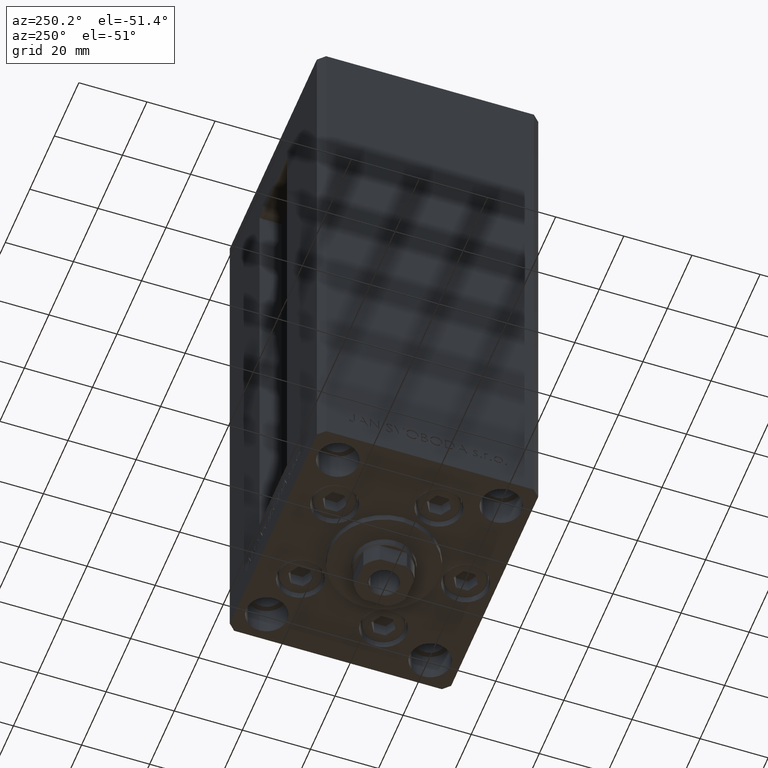
[diagram: clean part render]
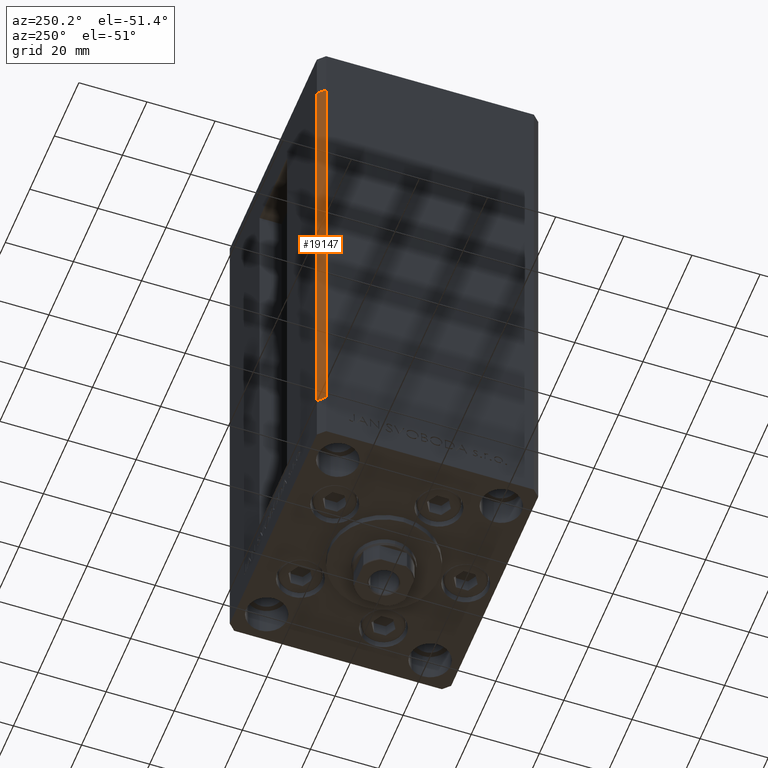
[diagram: same view with one face highlighted and labeled with its STEP entity id]
A machine part, auxiliary view. The second image highlights one B-rep face of the part: STEP entity #19147.
In plain terms, the highlighted planar face has unit normal (0.7071, -0.7071, 0).
Its self-contained STEP definition (entity closure, byte-faithful):
#1422 = EDGE_CURVE ( 'NONE', #25879, #16804, #31810, .T. ) ;
#1599 = CARTESIAN_POINT ( 'NONE',  ( -35.50000000000000000, 32.49999999999999289, 136.0000000000000000 ) ) ;
#6420 = DIRECTION ( 'NONE',  ( 0.7071067811865451302, -0.7071067811865500152, 0.000000000000000000 ) ) ;
#7859 = ORIENTED_EDGE ( 'NONE', *, *, #47661, .T. ) ;
#9646 = CARTESIAN_POINT ( 'NONE',  ( -35.50000000000000000, 32.49999999999999289, 136.0000000000000000 ) ) ;
#10324 = VECTOR ( 'NONE', #39449, 1000.000000000000114 ) ;
#10545 = CARTESIAN_POINT ( 'NONE',  ( -37.50000000000000711, 30.50000000000000000, 136.0000000000000000 ) ) ;
#10853 = DIRECTION ( 'NONE',  ( -0.7071067811865500152, -0.7071067811865451302, 0.000000000000000000 ) ) ;
#13830 = FACE_OUTER_BOUND ( 'NONE', #35069, .T. ) ;
#14558 = LINE ( 'NONE', #44761, #41012 ) ;
#16098 = VERTEX_POINT ( 'NONE', #30635 ) ;
#16804 = VERTEX_POINT ( 'NONE', #22054 ) ;
#17544 = DIRECTION ( 'NONE',  ( 0.7071067811865500152, 0.7071067811865451302, 0.000000000000000000 ) ) ;
#17762 = VECTOR ( 'NONE', #39693, 1000.000000000000000 ) ;
#19147 = ADVANCED_FACE ( 'NONE', ( #13830 ), #35874, .F. ) ;
#19247 = EDGE_CURVE ( 'NONE', #28566, #16804, #14558, .T. ) ;
#20421 = CARTESIAN_POINT ( 'NONE',  ( -37.50000000000000711, 30.50000000000000000, 136.0000000000000000 ) ) ;
#21976 = ORIENTED_EDGE ( 'NONE', *, *, #1422, .F. ) ;
#22054 = CARTESIAN_POINT ( 'NONE',  ( -37.50000000000000711, 30.50000000000000000, 0.000000000000000000 ) ) ;
#24352 = LINE ( 'NONE', #28304, #10324 ) ;
#24597 = LINE ( 'NONE', #1599, #17762 ) ;
#25879 = VERTEX_POINT ( 'NONE', #10545 ) ;
#28304 = CARTESIAN_POINT ( 'NONE',  ( -35.50000000000000000, 32.49999999999999289, 136.0000000000000000 ) ) ;
#28566 = VERTEX_POINT ( 'NONE', #40970 ) ;
#29683 = VECTOR ( 'NONE', #31565, 1000.000000000000000 ) ;
#29904 = AXIS2_PLACEMENT_3D ( 'NONE', #9646, #6420, #17544 ) ;
#30635 = CARTESIAN_POINT ( 'NONE',  ( -35.50000000000000000, 32.49999999999999289, 136.0000000000000000 ) ) ;
#30817 = ORIENTED_EDGE ( 'NONE', *, *, #19247, .T. ) ;
#31565 = DIRECTION ( 'NONE',  ( -0.000000000000000000, -0.000000000000000000, -1.000000000000000000 ) ) ;
#31810 = LINE ( 'NONE', #20421, #29683 ) ;
#34050 = ORIENTED_EDGE ( 'NONE', *, *, #36538, .F. ) ;
#35069 = EDGE_LOOP ( 'NONE', ( #30817, #21976, #34050, #7859 ) ) ;
#35874 = PLANE ( 'NONE',  #29904 ) ;
#36538 = EDGE_CURVE ( 'NONE', #16098, #25879, #24352, .T. ) ;
#39449 = DIRECTION ( 'NONE',  ( -0.7071067811865500152, -0.7071067811865451302, 0.000000000000000000 ) ) ;
#39693 = DIRECTION ( 'NONE',  ( -0.000000000000000000, -0.000000000000000000, -1.000000000000000000 ) ) ;
#40970 = CARTESIAN_POINT ( 'NONE',  ( -35.50000000000000000, 32.49999999999999289, 0.000000000000000000 ) ) ;
#41012 = VECTOR ( 'NONE', #10853, 1000.000000000000114 ) ;
#44761 = CARTESIAN_POINT ( 'NONE',  ( -35.50000000000000000, 32.49999999999999289, 0.000000000000000000 ) ) ;
#47661 = EDGE_CURVE ( 'NONE', #16098, #28566, #24597, .T. ) ;